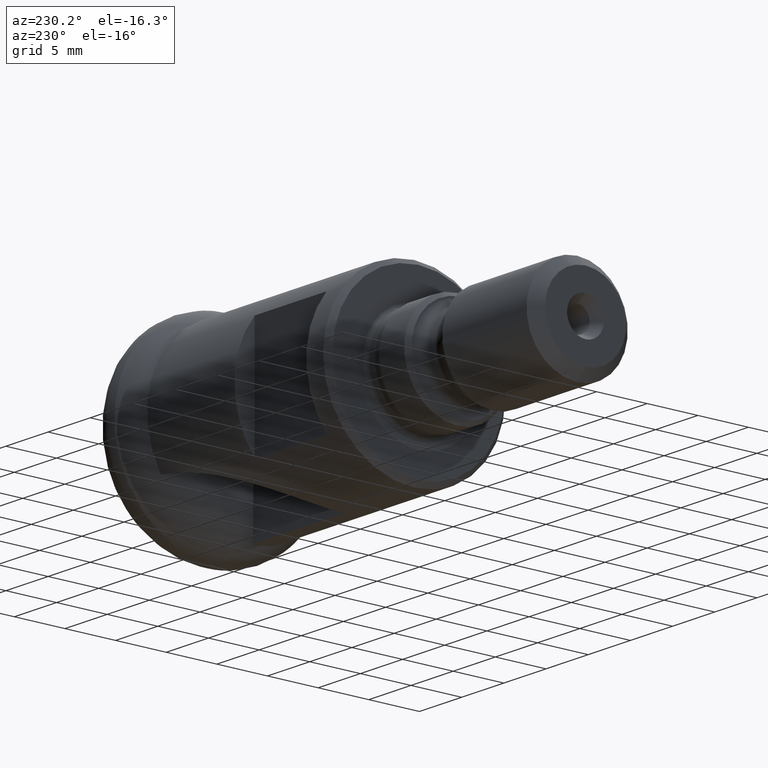
[diagram: clean part render]
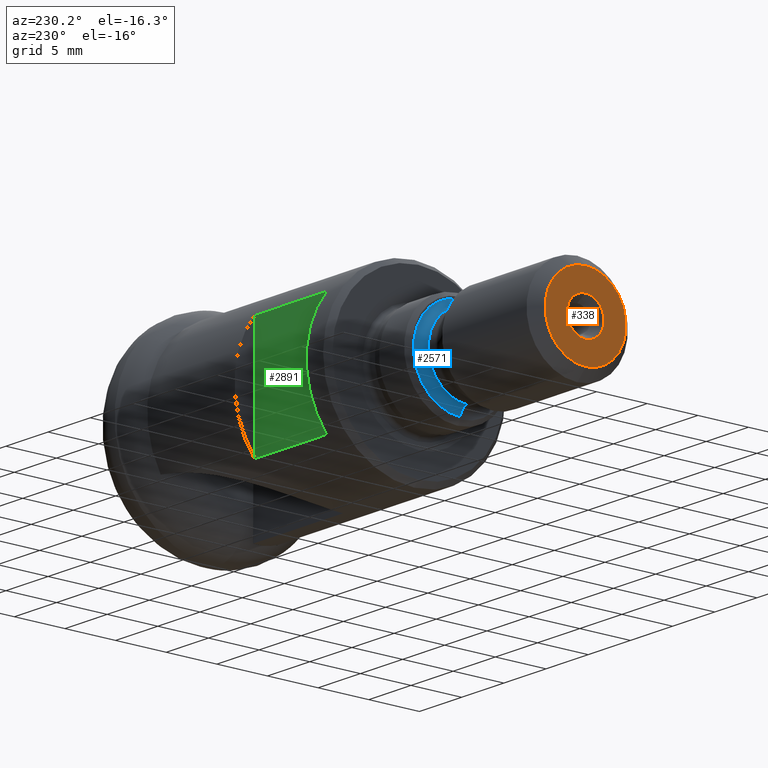
[diagram: same view with three faces highlighted in distinct colors, each labeled with its STEP entity id]
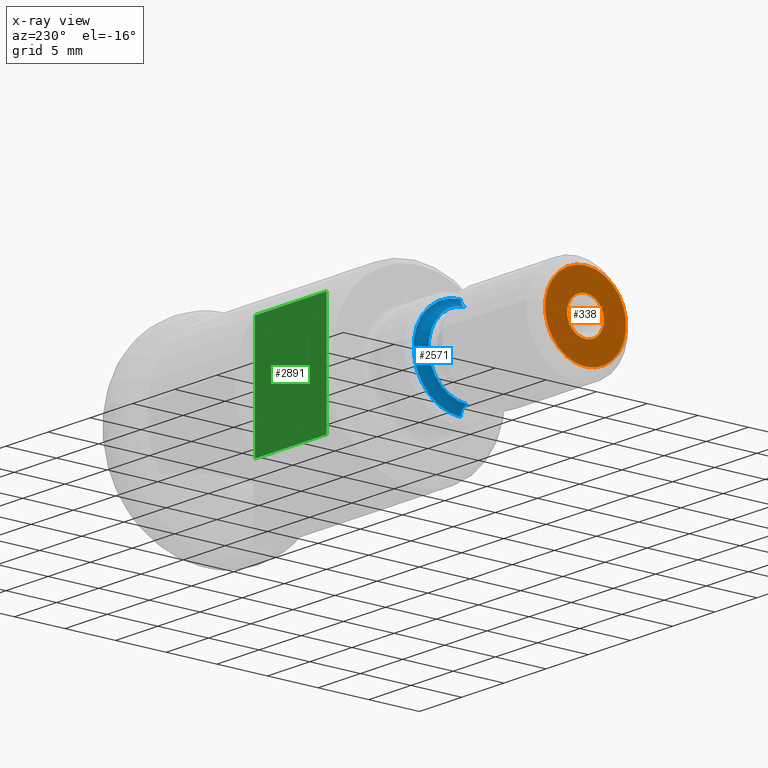
[diagram: x-ray of the same camera — body ghosted, the three highlighted faces saturated]
A machine part, auxiliary view with three faces highlighted in distinct colors.
The next image is the same camera in x-ray (body ghosted, the three faces saturated) — at least one of them is partly hidden behind the body in this view.
Their STEP definitions:

[orange] entity #338 — the highlighted planar face has unit normal (-1, 0, 0).
#29 = CIRCLE ( 'NONE', #2417, 1.827350269189631100 ) ;
#123 = CIRCLE ( 'NONE', #3296, 3.999999999999992500 ) ;
#164 = DIRECTION ( 'NONE',  ( 0.0000000000000000000, 0.0000000000000000000, 1.000000000000000000 ) ) ;
#238 = EDGE_CURVE ( 'NONE', #1209, #998, #1248, .T. ) ;
#338 = ADVANCED_FACE ( 'NONE', ( #2540, #1631 ), #2644, .T. ) ;
#364 = ORIENTED_EDGE ( 'NONE', *, *, #2011, .T. ) ;
#438 = DIRECTION ( 'NONE',  ( 1.000000000000000000, -0.0000000000000000000, -0.0000000000000000000 ) ) ;
#464 = DIRECTION ( 'NONE',  ( 0.0000000000000000000, 0.0000000000000000000, 1.000000000000000000 ) ) ;
#774 = VERTEX_POINT ( 'NONE', #2415 ) ;
#978 = ORIENTED_EDGE ( 'NONE', *, *, #238, .T. ) ;
#998 = VERTEX_POINT ( 'NONE', #2283 ) ;
#1020 = CARTESIAN_POINT ( 'NONE',  ( -46.69299999999999800, 0.0000000000000000000, 0.0000000000000000000 ) ) ;
#1071 = EDGE_CURVE ( 'NONE', #774, #1316, #123, .T. ) ;
#1203 = ORIENTED_EDGE ( 'NONE', *, *, #1071, .F. ) ;
#1209 = VERTEX_POINT ( 'NONE', #1659 ) ;
#1248 = CIRCLE ( 'NONE', #2325, 1.827350269189631100 ) ;
#1270 = CARTESIAN_POINT ( 'NONE',  ( -46.69299999999999800, 3.999999999999992500, 0.0000000000000000000 ) ) ;
#1316 = VERTEX_POINT ( 'NONE', #1679 ) ;
#1363 = EDGE_CURVE ( 'NONE', #1316, #774, #1611, .T. ) ;
#1459 = ORIENTED_EDGE ( 'NONE', *, *, #1363, .F. ) ;
#1611 = CIRCLE ( 'NONE', #3579, 3.999999999999992500 ) ;
#1631 = FACE_BOUND ( 'NONE', #2060, .T. ) ;
#1659 = CARTESIAN_POINT ( 'NONE',  ( -46.69299999999999800, 2.237858658084135500E-016, -1.827350269189630800 ) ) ;
#1679 = CARTESIAN_POINT ( 'NONE',  ( -46.69299999999999800, 5.510910596163080700E-016, 3.999999999999992500 ) ) ;
#1786 = DIRECTION ( 'NONE',  ( 0.0000000000000000000, 0.0000000000000000000, -1.000000000000000000 ) ) ;
#1846 = CARTESIAN_POINT ( 'NONE',  ( -46.69299999999999800, 0.0000000000000000000, 0.0000000000000000000 ) ) ;
#2011 = EDGE_CURVE ( 'NONE', #998, #1209, #29, .T. ) ;
#2060 = EDGE_LOOP ( 'NONE', ( #364, #978 ) ) ;
#2227 = DIRECTION ( 'NONE',  ( 1.000000000000000000, -0.0000000000000000000, -0.0000000000000000000 ) ) ;
#2283 = CARTESIAN_POINT ( 'NONE',  ( -46.69299999999999800, 0.0000000000000000000, 1.827350269189630800 ) ) ;
#2325 = AXIS2_PLACEMENT_3D ( 'NONE', #1020, #2667, #164 ) ;
#2385 = DIRECTION ( 'NONE',  ( 0.0000000000000000000, 0.0000000000000000000, 1.000000000000000000 ) ) ;
#2415 = CARTESIAN_POINT ( 'NONE',  ( -46.69299999999999800, 0.0000000000000000000, -3.999999999999992500 ) ) ;
#2417 = AXIS2_PLACEMENT_3D ( 'NONE', #3236, #438, #464 ) ;
#2540 = FACE_OUTER_BOUND ( 'NONE', #3483, .T. ) ;
#2644 = PLANE ( 'NONE',  #3142 ) ;
#2667 = DIRECTION ( 'NONE',  ( 1.000000000000000000, -0.0000000000000000000, -0.0000000000000000000 ) ) ;
#2800 = DIRECTION ( 'NONE',  ( 1.000000000000000000, -0.0000000000000000000, -0.0000000000000000000 ) ) ;
#3113 = CARTESIAN_POINT ( 'NONE',  ( -46.69299999999999800, 0.0000000000000000000, 0.0000000000000000000 ) ) ;
#3142 = AXIS2_PLACEMENT_3D ( 'NONE', #1270, #3209, #2385 ) ;
#3209 = DIRECTION ( 'NONE',  ( -1.000000000000000000, 0.0000000000000000000, 0.0000000000000000000 ) ) ;
#3236 = CARTESIAN_POINT ( 'NONE',  ( -46.69299999999999800, 0.0000000000000000000, 0.0000000000000000000 ) ) ;
#3296 = AXIS2_PLACEMENT_3D ( 'NONE', #1846, #2800, #3541 ) ;
#3483 = EDGE_LOOP ( 'NONE', ( #1203, #1459 ) ) ;
#3541 = DIRECTION ( 'NONE',  ( 0.0000000000000000000, 0.0000000000000000000, -1.000000000000000000 ) ) ;
#3579 = AXIS2_PLACEMENT_3D ( 'NONE', #3113, #2227, #1786 ) ;

[blue] entity #2571 — the highlighted toroidal blend (fillet) surface has major radius 4.65 mm and minor (blend) radius 0.8 mm.
#32 = EDGE_CURVE ( 'NONE', #729, #499, #1865, .T. ) ;
#94 = DIRECTION ( 'NONE',  ( 0.0000000000000000000, 0.0000000000000000000, -1.000000000000000000 ) ) ;
#137 = EDGE_CURVE ( 'NONE', #1885, #729, #2544, .T. ) ;
#165 = VERTEX_POINT ( 'NONE', #3173 ) ;
#249 = DIRECTION ( 'NONE',  ( 0.0000000000000000000, 1.224646799147353700E-016, 1.000000000000000000 ) ) ;
#414 = ORIENTED_EDGE ( 'NONE', *, *, #483, .F. ) ;
#483 = EDGE_CURVE ( 'NONE', #165, #499, #2547, .T. ) ;
#499 = VERTEX_POINT ( 'NONE', #1085 ) ;
#521 = CARTESIAN_POINT ( 'NONE',  ( -31.89300000000000400, 0.0000000000000000000, 0.0000000000000000000 ) ) ;
#665 = EDGE_LOOP ( 'NONE', ( #414, #2297, #876, #2743 ) ) ;
#714 = DIRECTION ( 'NONE',  ( 0.0000000000000000000, 0.0000000000000000000, -1.000000000000000000 ) ) ;
#719 = AXIS2_PLACEMENT_3D ( 'NONE', #1601, #3549, #714 ) ;
#729 = VERTEX_POINT ( 'NONE', #3151 ) ;
#876 = ORIENTED_EDGE ( 'NONE', *, *, #137, .T. ) ;
#920 = DIRECTION ( 'NONE',  ( -0.0000000000000000000, -1.000000000000000000, -0.0000000000000000000 ) ) ;
#1007 = EDGE_CURVE ( 'NONE', #1885, #165, #1483, .T. ) ;
#1035 = AXIS2_PLACEMENT_3D ( 'NONE', #3055, #1398, #1958 ) ;
#1085 = CARTESIAN_POINT ( 'NONE',  ( -32.69299999999999800, 5.204748896376247700E-016, 3.849999999999996500 ) ) ;
#1142 = AXIS2_PLACEMENT_3D ( 'NONE', #521, #2270, #2017 ) ;
#1205 = AXIS2_PLACEMENT_3D ( 'NONE', #1660, #2744, #249 ) ;
#1397 = FACE_OUTER_BOUND ( 'NONE', #665, .T. ) ;
#1398 = DIRECTION ( 'NONE',  ( 1.000000000000000000, -0.0000000000000000000, -0.0000000000000000000 ) ) ;
#1483 = CIRCLE ( 'NONE', #1142, 4.649999999999995900 ) ;
#1601 = CARTESIAN_POINT ( 'NONE',  ( -32.69299999999999800, 0.0000000000000000000, 0.0000000000000000000 ) ) ;
#1660 = CARTESIAN_POINT ( 'NONE',  ( -32.69299999999999800, 5.694607616035187900E-016, 4.649999999999995900 ) ) ;
#1792 = CARTESIAN_POINT ( 'NONE',  ( -31.89300000000000400, 0.0000000000000000000, -4.649999999999995900 ) ) ;
#1793 = AXIS2_PLACEMENT_3D ( 'NONE', #2562, #920, #94 ) ;
#1865 = CIRCLE ( 'NONE', #1035, 3.849999999999996500 ) ;
#1885 = VERTEX_POINT ( 'NONE', #1792 ) ;
#1958 = DIRECTION ( 'NONE',  ( 0.0000000000000000000, 0.0000000000000000000, -1.000000000000000000 ) ) ;
#2017 = DIRECTION ( 'NONE',  ( 0.0000000000000000000, 0.0000000000000000000, -1.000000000000000000 ) ) ;
#2270 = DIRECTION ( 'NONE',  ( 1.000000000000000000, -0.0000000000000000000, -0.0000000000000000000 ) ) ;
#2297 = ORIENTED_EDGE ( 'NONE', *, *, #1007, .F. ) ;
#2544 = CIRCLE ( 'NONE', #1793, 0.7999999999999969400 ) ;
#2547 = CIRCLE ( 'NONE', #1205, 0.7999999999999969400 ) ;
#2562 = CARTESIAN_POINT ( 'NONE',  ( -32.69299999999999800, 0.0000000000000000000, -4.649999999999995900 ) ) ;
#2571 = ADVANCED_FACE ( 'NONE', ( #1397 ), #2877, .F. ) ;
#2743 = ORIENTED_EDGE ( 'NONE', *, *, #32, .T. ) ;
#2744 = DIRECTION ( 'NONE',  ( 0.0000000000000000000, 1.000000000000000000, -1.224646799147353200E-016 ) ) ;
#2877 = TOROIDAL_SURFACE ( 'NONE', #719, 4.649999999999995900, 0.7999999999999973800 ) ;
#3055 = CARTESIAN_POINT ( 'NONE',  ( -32.69299999999999800, 0.0000000000000000000, 0.0000000000000000000 ) ) ;
#3151 = CARTESIAN_POINT ( 'NONE',  ( -32.69299999999999800, 0.0000000000000000000, -3.849999999999996500 ) ) ;
#3173 = CARTESIAN_POINT ( 'NONE',  ( -31.89300000000000400, 5.694607616035187900E-016, 4.649999999999995900 ) ) ;
#3549 = DIRECTION ( 'NONE',  ( 1.000000000000000000, -0.0000000000000000000, -0.0000000000000000000 ) ) ;

[green] entity #2891 — the highlighted planar face has unit normal (0, -1, 0).
#188 = VERTEX_POINT ( 'NONE', #1470 ) ;
#248 = CARTESIAN_POINT ( 'NONE',  ( 0.0000000000000000000, 6.999999999999997300, 5.656854249492379700 ) ) ;
#281 = ORIENTED_EDGE ( 'NONE', *, *, #1872, .F. ) ;
#545 = LINE ( 'NONE', #2975, #3301 ) ;
#549 = LINE ( 'NONE', #248, #3077 ) ;
#627 = ORIENTED_EDGE ( 'NONE', *, *, #899, .T. ) ;
#899 = EDGE_CURVE ( 'NONE', #188, #1901, #3516, .T. ) ;
#934 = VERTEX_POINT ( 'NONE', #1905 ) ;
#950 = CARTESIAN_POINT ( 'NONE',  ( -15.89299999999999700, 6.999999999999997300, -15.00000000000000000 ) ) ;
#970 = LINE ( 'NONE', #950, #1697 ) ;
#1100 = DIRECTION ( 'NONE',  ( 1.000000000000000000, -0.0000000000000000000, -0.0000000000000000000 ) ) ;
#1168 = CARTESIAN_POINT ( 'NONE',  ( -15.89299999999999700, 6.999999999999997300, -5.656854249492380600 ) ) ;
#1192 = DIRECTION ( 'NONE',  ( 0.0000000000000000000, -0.0000000000000000000, -1.000000000000000000 ) ) ;
#1298 = EDGE_CURVE ( 'NONE', #1901, #934, #549, .T. ) ;
#1376 = VERTEX_POINT ( 'NONE', #1168 ) ;
#1470 = CARTESIAN_POINT ( 'NONE',  ( -24.39299999999999700, 6.999999999999997300, -5.656854249492380600 ) ) ;
#1484 = FACE_OUTER_BOUND ( 'NONE', #3470, .T. ) ;
#1626 = EDGE_CURVE ( 'NONE', #1376, #188, #545, .T. ) ;
#1629 = DIRECTION ( 'NONE',  ( -0.0000000000000000000, -0.0000000000000000000, 1.000000000000000000 ) ) ;
#1697 = VECTOR ( 'NONE', #2072, 1000.000000000000000 ) ;
#1745 = DIRECTION ( 'NONE',  ( 0.0000000000000000000, -1.000000000000000000, 0.0000000000000000000 ) ) ;
#1848 = AXIS2_PLACEMENT_3D ( 'NONE', #2886, #1745, #1192 ) ;
#1872 = EDGE_CURVE ( 'NONE', #1376, #934, #970, .T. ) ;
#1901 = VERTEX_POINT ( 'NONE', #2085 ) ;
#1905 = CARTESIAN_POINT ( 'NONE',  ( -15.89299999999999700, 6.999999999999997300, 5.656854249492380600 ) ) ;
#1945 = VECTOR ( 'NONE', #1629, 1000.000000000000000 ) ;
#2072 = DIRECTION ( 'NONE',  ( -0.0000000000000000000, -0.0000000000000000000, 1.000000000000000000 ) ) ;
#2085 = CARTESIAN_POINT ( 'NONE',  ( -24.39299999999999700, 6.999999999999997300, 5.656854249492379700 ) ) ;
#2115 = ORIENTED_EDGE ( 'NONE', *, *, #1298, .T. ) ;
#2248 = ORIENTED_EDGE ( 'NONE', *, *, #1626, .T. ) ;
#2580 = PLANE ( 'NONE',  #1848 ) ;
#2886 = CARTESIAN_POINT ( 'NONE',  ( -24.39299999999999700, 6.999999999999997300, -15.00000000000000000 ) ) ;
#2891 = ADVANCED_FACE ( 'NONE', ( #1484 ), #2580, .F. ) ;
#2975 = CARTESIAN_POINT ( 'NONE',  ( 0.0000000000000000000, 6.999999999999997300, -5.656854249492379700 ) ) ;
#3077 = VECTOR ( 'NONE', #1100, 1000.000000000000000 ) ;
#3249 = DIRECTION ( 'NONE',  ( -1.000000000000000000, 0.0000000000000000000, 0.0000000000000000000 ) ) ;
#3297 = CARTESIAN_POINT ( 'NONE',  ( -24.39299999999999700, 6.999999999999997300, -15.00000000000000000 ) ) ;
#3301 = VECTOR ( 'NONE', #3249, 1000.000000000000000 ) ;
#3470 = EDGE_LOOP ( 'NONE', ( #2248, #627, #2115, #281 ) ) ;
#3516 = LINE ( 'NONE', #3297, #1945 ) ;